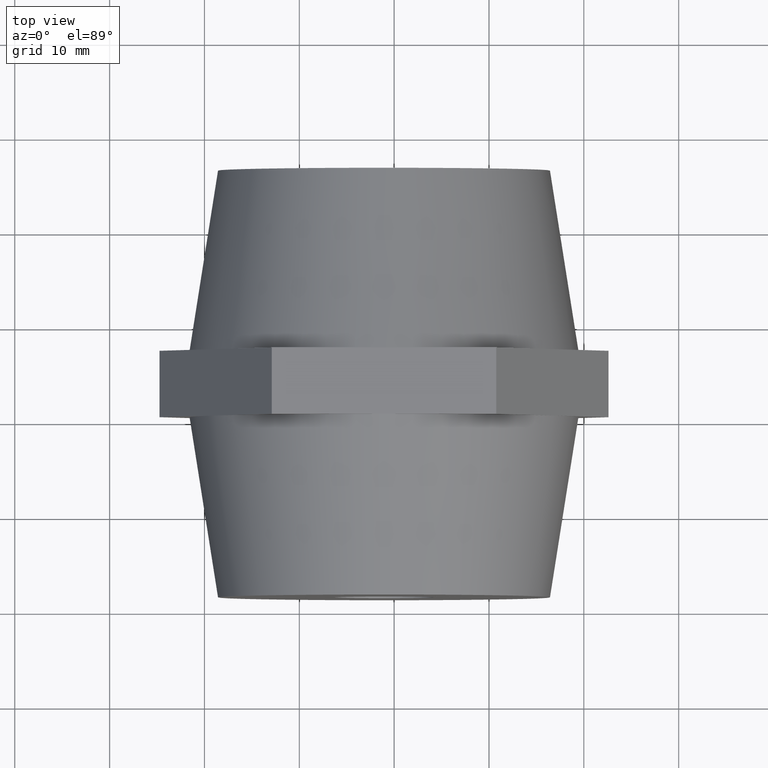
[diagram: clean part render]
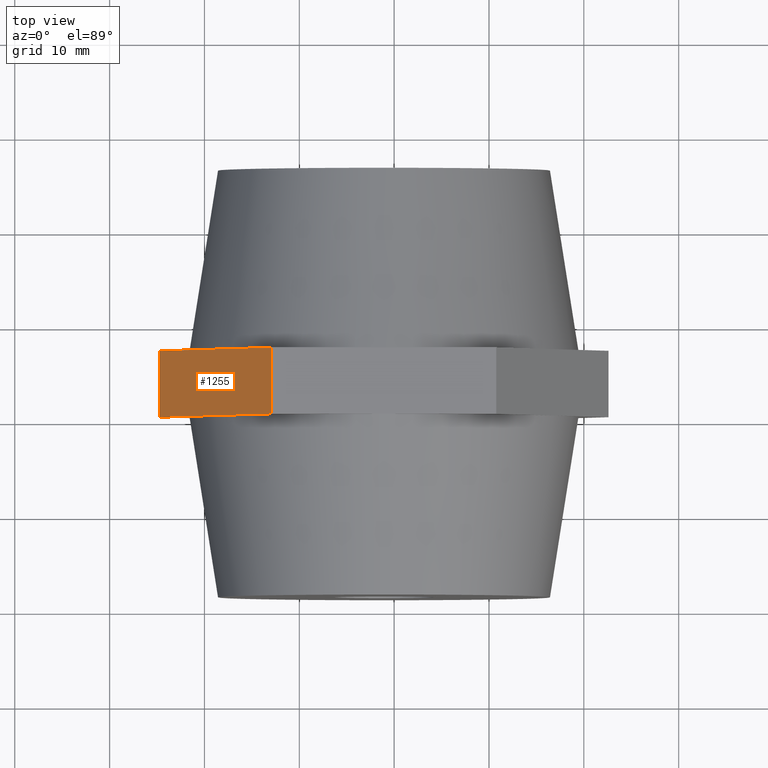
[diagram: same view with one face highlighted and labeled with its STEP entity id]
A machine part, top view. The second image highlights one B-rep face of the part: STEP entity #1255.
In plain terms, the highlighted planar face has unit normal (0.866, 0, -0.5).
Its self-contained STEP definition (entity closure, byte-faithful):
#97 = EDGE_CURVE ( 'NONE', #958, #1104, #547, .T. ) ;
#231 = CARTESIAN_POINT ( 'NONE',  ( -23.67136103677464800, 3.500000000000000000, -6.892897232898371300E-017 ) ) ;
#252 = CARTESIAN_POINT ( 'NONE',  ( -11.83568051838734000, 3.500000000000000000, 20.50000000000000000 ) ) ;
#284 = AXIS2_PLACEMENT_3D ( 'NONE', #766, #1941, #2541 ) ;
#383 = DIRECTION ( 'NONE',  ( 0.0000000000000000000, -1.000000000000000000, 0.0000000000000000000 ) ) ;
#445 = LINE ( 'NONE', #3386, #1688 ) ;
#547 = LINE ( 'NONE', #231, #3629 ) ;
#675 = LINE ( 'NONE', #3835, #1122 ) ;
#688 = ORIENTED_EDGE ( 'NONE', *, *, #3842, .T. ) ;
#690 = EDGE_CURVE ( 'NONE', #1104, #1244, #3669, .T. ) ;
#723 = DIRECTION ( 'NONE',  ( 0.4999999999999998900, 0.0000000000000000000, 0.8660254037844387100 ) ) ;
#729 = CARTESIAN_POINT ( 'NONE',  ( -11.83568051838734000, -3.500000000000000000, 20.50000000000000000 ) ) ;
#766 = CARTESIAN_POINT ( 'NONE',  ( -23.67136103677464800, 3.500000000000000000, -6.892897232898371300E-017 ) ) ;
#796 = DIRECTION ( 'NONE',  ( 0.4999999999999998900, 0.0000000000000000000, 0.8660254037844387100 ) ) ;
#957 = CARTESIAN_POINT ( 'NONE',  ( -23.67136103677464800, 3.500000000000000000, -6.892897232898371300E-017 ) ) ;
#958 = VERTEX_POINT ( 'NONE', #1907 ) ;
#998 = ORIENTED_EDGE ( 'NONE', *, *, #97, .F. ) ;
#1104 = VERTEX_POINT ( 'NONE', #1449 ) ;
#1122 = VECTOR ( 'NONE', #723, 1000.000000000000000 ) ;
#1241 = LINE ( 'NONE', #2171, #2652 ) ;
#1244 = VERTEX_POINT ( 'NONE', #729 ) ;
#1255 = ADVANCED_FACE ( 'NONE', ( #1511 ), #1984, .F. ) ;
#1271 = ORIENTED_EDGE ( 'NONE', *, *, #690, .F. ) ;
#1449 = CARTESIAN_POINT ( 'NONE',  ( -11.83568051838734000, 3.500000000000000000, 20.50000000000000000 ) ) ;
#1511 = FACE_OUTER_BOUND ( 'NONE', #2990, .T. ) ;
#1688 = VECTOR ( 'NONE', #3422, 1000.000000000000000 ) ;
#1741 = EDGE_CURVE ( 'NONE', #2853, #2063, #445, .T. ) ;
#1907 = CARTESIAN_POINT ( 'NONE',  ( -17.75352077758099900, 3.500000000000000000, 10.25000000000000000 ) ) ;
#1941 = DIRECTION ( 'NONE',  ( 0.8660254037844387100, 0.0000000000000000000, -0.4999999999999998900 ) ) ;
#1966 = LINE ( 'NONE', #2554, #2877 ) ;
#1984 = PLANE ( 'NONE',  #284 ) ;
#1995 = CARTESIAN_POINT ( 'NONE',  ( -23.67136103677464800, -3.500000000000000000, -6.892897232898371300E-017 ) ) ;
#2063 = VERTEX_POINT ( 'NONE', #3302 ) ;
#2165 = VECTOR ( 'NONE', #3288, 1000.000000000000000 ) ;
#2171 = CARTESIAN_POINT ( 'NONE',  ( -23.67136103677464800, 3.500000000000000000, -6.892897232898371300E-017 ) ) ;
#2445 = EDGE_CURVE ( 'NONE', #2063, #1244, #675, .T. ) ;
#2541 = DIRECTION ( 'NONE',  ( -0.4999999999999998900, 0.0000000000000000000, -0.8660254037844387100 ) ) ;
#2554 = CARTESIAN_POINT ( 'NONE',  ( -23.67136103677464800, 3.500000000000000000, -6.892897232898371300E-017 ) ) ;
#2652 = VECTOR ( 'NONE', #383, 1000.000000000000000 ) ;
#2853 = VERTEX_POINT ( 'NONE', #1995 ) ;
#2877 = VECTOR ( 'NONE', #2910, 1000.000000000000000 ) ;
#2881 = ORIENTED_EDGE ( 'NONE', *, *, #1741, .T. ) ;
#2910 = DIRECTION ( 'NONE',  ( 0.4999999999999998900, 0.0000000000000000000, 0.8660254037844387100 ) ) ;
#2990 = EDGE_LOOP ( 'NONE', ( #2881, #3060, #1271, #998, #3353, #688 ) ) ;
#3060 = ORIENTED_EDGE ( 'NONE', *, *, #2445, .T. ) ;
#3159 = VERTEX_POINT ( 'NONE', #957 ) ;
#3230 = EDGE_CURVE ( 'NONE', #3159, #958, #1966, .T. ) ;
#3288 = DIRECTION ( 'NONE',  ( 0.0000000000000000000, -1.000000000000000000, 0.0000000000000000000 ) ) ;
#3302 = CARTESIAN_POINT ( 'NONE',  ( -17.75352077758099900, -3.500000000000000000, 10.25000000000000000 ) ) ;
#3353 = ORIENTED_EDGE ( 'NONE', *, *, #3230, .F. ) ;
#3386 = CARTESIAN_POINT ( 'NONE',  ( -23.67136103677464800, -3.500000000000000000, -6.892897232898371300E-017 ) ) ;
#3422 = DIRECTION ( 'NONE',  ( 0.4999999999999998900, 0.0000000000000000000, 0.8660254037844387100 ) ) ;
#3629 = VECTOR ( 'NONE', #796, 1000.000000000000000 ) ;
#3669 = LINE ( 'NONE', #252, #2165 ) ;
#3835 = CARTESIAN_POINT ( 'NONE',  ( -23.67136103677464800, -3.500000000000000000, -6.892897232898371300E-017 ) ) ;
#3842 = EDGE_CURVE ( 'NONE', #3159, #2853, #1241, .T. ) ;